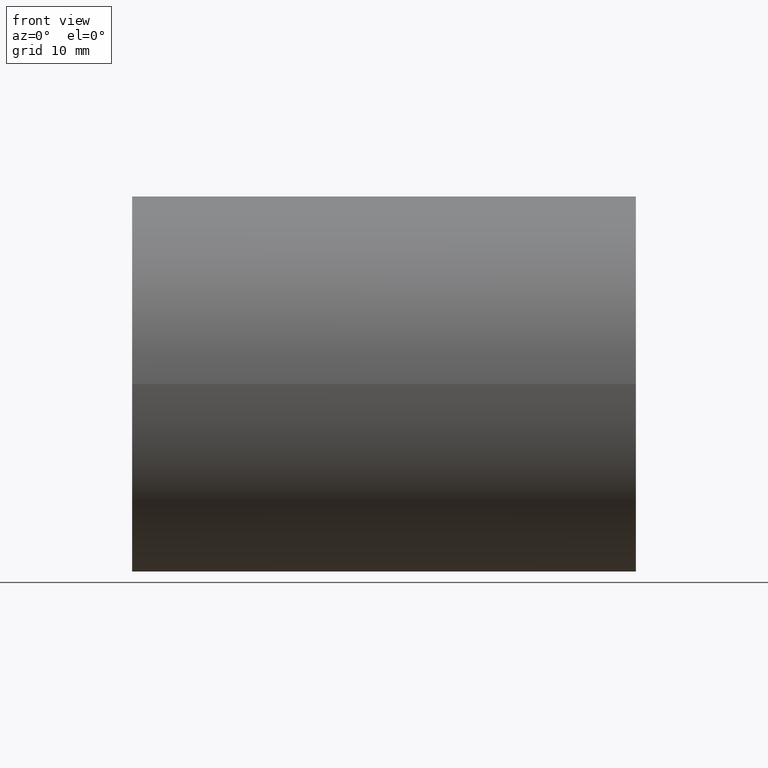
[diagram: clean part render]
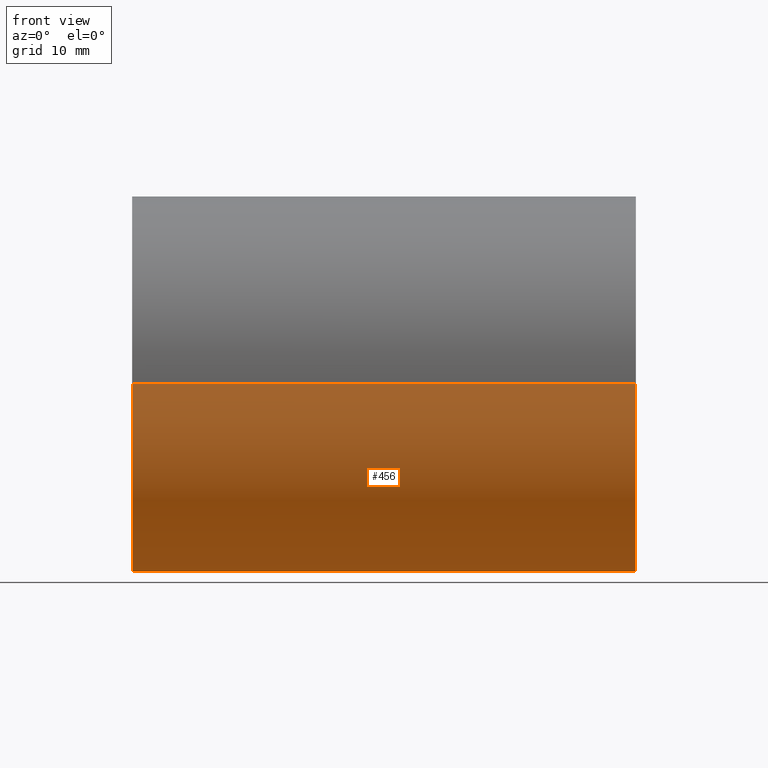
[diagram: same view with one face highlighted and labeled with its STEP entity id]
A machine part, front view. The second image highlights one B-rep face of the part: STEP entity #456.
In plain terms, the highlighted cylindrical surface (partial cylindrical patch) has radius 30.15 mm, axis along (1, 0, -0).
Its self-contained STEP definition (entity closure, byte-faithful):
#1 = CARTESIAN_POINT ( 'NONE',  ( 7.257899920961155438, 30.09054209445073624, -1.954459448923514309 ) ) ;
#6 = CARTESIAN_POINT ( 'NONE',  ( 6.833178922795428711, 29.99094050289255620, -3.101204850805989732 ) ) ;
#7 = CARTESIAN_POINT ( 'NONE',  ( -3.758825390325387428, 29.44040599668011282, -6.508684677632751381 ) ) ;
#13 = CARTESIAN_POINT ( 'NONE',  ( 3.764721945487967236, 29.44120856578778600, -6.504956787482730540 ) ) ;
#22 = CARTESIAN_POINT ( 'NONE',  ( -7.500000000000000000, 30.14999999999999858, 6.235175805712512231E-16 ) ) ;
#28 = VERTEX_POINT ( 'NONE', #253 ) ;
#38 = VERTEX_POINT ( 'NONE', #408 ) ;
#41 = CARTESIAN_POINT ( 'NONE',  ( 2.417079047445003237, 29.30119336752071035, -7.104081497322757066 ) ) ;
#43 = CARTESIAN_POINT ( 'NONE',  ( 6.495921771435392067, 29.91582617749616801, -3.756809246378832068 ) ) ;
#47 = CARTESIAN_POINT ( 'NONE',  ( -4.570604388502558457, 29.55720114824842781, -5.951416819226710508 ) ) ;
#48 = CARTESIAN_POINT ( 'NONE',  ( 40.49999999999999289, 30.15000000000001634, 0.000000000000000000 ) ) ;
#49 = DIRECTION ( 'NONE',  ( 1.000000000000000000, 3.061616997868382648E-16, -0.000000000000000000 ) ) ;
#54 = DIRECTION ( 'NONE',  ( -1.000000000000000000, -3.061616997868382648E-16, 0.000000000000000000 ) ) ;
#58 = CARTESIAN_POINT ( 'NONE',  ( -40.50000000000000711, 30.14999999999998792, 0.000000000000000000 ) ) ;
#60 = CARTESIAN_POINT ( 'NONE',  ( -6.095169833071157228, 29.83128716922219681, -4.377141417540606483 ) ) ;
#61 = DIRECTION ( 'NONE',  ( 1.000000000000000000, 3.061616997868382648E-16, -0.000000000000000000 ) ) ;
#62 = CARTESIAN_POINT ( 'NONE',  ( -40.50000000000000000, -1.022580077288039749E-14, 0.000000000000000000 ) ) ;
#84 = EDGE_CURVE ( 'NONE', #414, #491, #285, .T. ) ;
#85 = CARTESIAN_POINT ( 'NONE',  ( -1.945518420329401588, 29.26305329673580502, -7.259888212938143681 ) ) ;
#87 = CARTESIAN_POINT ( 'NONE',  ( 6.728320190875644258, 29.96714782578584746, -3.322698117997020972 ) ) ;
#88 = AXIS2_PLACEMENT_3D ( 'NONE', #415, #61, #342 ) ;
#89 = CARTESIAN_POINT ( 'NONE',  ( -2.709782837249907731E-15, 29.20226874747919510, -7.500000000000001776 ) ) ;
#94 = ORIENTED_EDGE ( 'NONE', *, *, #178, .T. ) ;
#100 = ORIENTED_EDGE ( 'NONE', *, *, #84, .F. ) ;
#122 = ORIENTED_EDGE ( 'NONE', *, *, #188, .T. ) ;
#133 = CARTESIAN_POINT ( 'NONE',  ( 1.947421301188889453, 29.26619400201478172, -7.246916262651096119 ) ) ;
#135 = EDGE_CURVE ( 'NONE', #28, #315, #517, .T. ) ;
#144 = FACE_OUTER_BOUND ( 'NONE', #519, .T. ) ;
#145 = DIRECTION ( 'NONE',  ( 1.000000000000000000, 3.061616997868382648E-16, -0.000000000000000000 ) ) ;
#156 = VECTOR ( 'NONE', #461, 1000.000000000000000 ) ;
#157 = AXIS2_PLACEMENT_3D ( 'NONE', #503, #54, #184 ) ;
#167 = CARTESIAN_POINT ( 'NONE',  ( 5.959454293609715236, 29.80296220583634792, -4.579830375796719366 ) ) ;
#169 = B_SPLINE_CURVE_WITH_KNOTS ( 'NONE', 3,
 ( #518, #391, #457, #1, #171, #6, #87, #43, #327, #167, #332, #450, #324, #249, #448, #13, #409, #489, #41, #133, #293, #445, #297, #320, #208 ),
 .UNSPECIFIED., .F., .F.,
 ( 4, 2, 2, 2, 2, 2, 2, 2, 2, 2, 1, 2, 4 ),
 ( 0.02354115631482120788, 0.02501237729148983804, 0.02648359826815846821, 0.02721920875649278676, 0.02795481924482710184, 0.02942604022149573201, 0.03016165070983004709, 0.03089726119816436217, 0.03236848217483298540, 0.03310409266316730048, 0.03383970315150161556, 0.03457531363983593065, 0.03531092412817024573 ),
 .UNSPECIFIED. ) ;
#171 = CARTESIAN_POINT ( 'NONE',  ( 7.114446939083600263, 30.05585745703253409, -2.423606325572946307 ) ) ;
#178 = EDGE_CURVE ( 'NONE', #38, #315, #186, .T. ) ;
#180 = CARTESIAN_POINT ( 'NONE',  ( -0.4945814229491364289, 29.20226874747919155, -7.500000000000000000 ) ) ;
#184 = DIRECTION ( 'NONE',  ( 2.301457347896261609E-16, -1.000000000000000000, 0.000000000000000000 ) ) ;
#185 = DIRECTION ( 'NONE',  ( -1.000000000000000000, -3.061616997868382648E-16, 0.000000000000000000 ) ) ;
#186 = LINE ( 'NONE', #512, #373 ) ;
#187 = CYLINDRICAL_SURFACE ( 'NONE', #88, 30.14999999999999858 ) ;
#188 = EDGE_CURVE ( 'NONE', #296, #361, #429, .T. ) ;
#208 = CARTESIAN_POINT ( 'NONE',  ( -2.709782837249907731E-15, 29.20226874747919510, -7.500000000000001776 ) ) ;
#211 = CARTESIAN_POINT ( 'NONE',  ( -4.948539832694137885, 29.61799726040874603, -5.641076152350087192 ) ) ;
#215 = AXIS2_PLACEMENT_3D ( 'NONE', #62, #185, #384 ) ;
#220 = CARTESIAN_POINT ( 'NONE',  ( -7.500000000000002665, 30.15000000000000924, -0.4974136404906663866 ) ) ;
#225 = CARTESIAN_POINT ( 'NONE',  ( -7.450995790178253309, 30.13770158883242800, -0.9876561040943162562 ) ) ;
#247 = CARTESIAN_POINT ( 'NONE',  ( -2.424035186337260228, 29.29924850759149280, -7.114334325466603381 ) ) ;
#249 = CARTESIAN_POINT ( 'NONE',  ( 4.568763765769825902, 29.55691057566958690, -5.952879847961887627 ) ) ;
#253 = CARTESIAN_POINT ( 'NONE',  ( -2.709782837249907731E-15, 29.20226874747919510, -7.500000000000001776 ) ) ;
#256 = EDGE_CURVE ( 'NONE', #38, #414, #292, .T. ) ;
#260 = CARTESIAN_POINT ( 'NONE',  ( -6.505593367890553758, 29.91694570946075515, -3.764187038947270914 ) ) ;
#261 = CARTESIAN_POINT ( 'NONE',  ( -6.735889782773024415, 29.96850493715256647, -3.334172780592237206 ) ) ;
#285 = LINE ( 'NONE', #291, #474 ) ;
#291 = CARTESIAN_POINT ( 'NONE',  ( -40.49999999999999289, -30.15000000000000924, 3.692310099429270397E-15 ) ) ;
#292 = CIRCLE ( 'NONE', #215, 30.14999999999999858 ) ;
#293 = CARTESIAN_POINT ( 'NONE',  ( 1.472557372412822252, 29.23642517908139027, -7.366207328173618230 ) ) ;
#294 = CARTESIAN_POINT ( 'NONE',  ( -3.328353066352716549, 29.38788782235466357, -6.738825219933660904 ) ) ;
#296 = VERTEX_POINT ( 'NONE', #388 ) ;
#297 = CARTESIAN_POINT ( 'NONE',  ( 0.4967811661545651347, 29.20546476929848367, -7.487587137914749391 ) ) ;
#307 = CARTESIAN_POINT ( 'NONE',  ( -5.473192700972075997, 29.71026193866455145, -5.133551392847827799 ) ) ;
#309 = CARTESIAN_POINT ( 'NONE',  ( -5.128990588209845214, 29.64878362725915295, -5.477466913732909504 ) ) ;
#315 = VERTEX_POINT ( 'NONE', #397 ) ;
#320 = CARTESIAN_POINT ( 'NONE',  ( 0.2473898949262569036, 29.20226874747919510, -7.499999999999999112 ) ) ;
#324 = CARTESIAN_POINT ( 'NONE',  ( 4.948620008384387425, 29.61800466638662144, -5.641058486161945495 ) ) ;
#327 = CARTESIAN_POINT ( 'NONE',  ( 6.368254693063371441, 29.88828211903363297, -3.969296864867852381 ) ) ;
#332 = CARTESIAN_POINT ( 'NONE',  ( 5.650363993895966885, 29.74194682474434615, -4.956063748514957013 ) ) ;
#342 = DIRECTION ( 'NONE',  ( -2.301457347896261609E-16, 1.000000000000000000, 0.000000000000000000 ) ) ;
#343 = CARTESIAN_POINT ( 'NONE',  ( -7.111665646447423939, 30.05519697605279461, -2.431693037710095595 ) ) ;
#353 = ORIENTED_EDGE ( 'NONE', *, *, #256, .F. ) ;
#357 = EDGE_CURVE ( 'NONE', #296, #28, #169, .T. ) ;
#361 = VERTEX_POINT ( 'NONE', #48 ) ;
#371 = CARTESIAN_POINT ( 'NONE',  ( -40.49999999999999289, -30.15000000000000924, 3.692310099429271974E-15 ) ) ;
#373 = VECTOR ( 'NONE', #145, 1000.000000000000000 ) ;
#383 = CARTESIAN_POINT ( 'NONE',  ( -7.257727571318580040, 30.09050229377596253, -1.954019791540228645 ) ) ;
#384 = DIRECTION ( 'NONE',  ( 2.301457347896261609E-16, -1.000000000000000000, 0.000000000000000000 ) ) ;
#388 = CARTESIAN_POINT ( 'NONE',  ( 7.500000000000000000, 30.15000000000000213, -7.042154990020730619E-21 ) ) ;
#390 = ORIENTED_EDGE ( 'NONE', *, *, #357, .F. ) ;
#391 = CARTESIAN_POINT ( 'NONE',  ( 7.500000000000000000, 30.14999999999999858, -0.4905988750414386756 ) ) ;
#397 = CARTESIAN_POINT ( 'NONE',  ( -7.500000000000000000, 30.14999999999999858, 6.235175805712512231E-16 ) ) ;
#400 = ORIENTED_EDGE ( 'NONE', *, *, #135, .F. ) ;
#408 = CARTESIAN_POINT ( 'NONE',  ( -40.50000000000000711, 30.14999999999998792, 0.000000000000000000 ) ) ;
#409 = CARTESIAN_POINT ( 'NONE',  ( 3.334695411056852965, 29.38854447379354440, -6.736016119325355156 ) ) ;
#410 = CARTESIAN_POINT ( 'NONE',  ( -4.371990682114887505, 29.52703611536552941, -6.098863304948894282 ) ) ;
#414 = VERTEX_POINT ( 'NONE', #371 ) ;
#415 = CARTESIAN_POINT ( 'NONE',  ( -40.50000000000000000, -1.022580077288039749E-14, 0.000000000000000000 ) ) ;
#420 = CARTESIAN_POINT ( 'NONE',  ( 40.50000000000000711, -30.14999999999998437, 3.692310099429270397E-15 ) ) ;
#421 = CARTESIAN_POINT ( 'NONE',  ( -5.947569797258573487, 29.80139052933342469, -4.575607948172633499 ) ) ;
#429 = LINE ( 'NONE', #58, #156 ) ;
#445 = CARTESIAN_POINT ( 'NONE',  ( 0.9873235422852029153, 29.21792581003722589, -7.438813406569740216 ) ) ;
#448 = CARTESIAN_POINT ( 'NONE',  ( 4.372452661671785812, 29.52711677256019129, -6.098447036328461301 ) ) ;
#450 = CARTESIAN_POINT ( 'NONE',  ( 5.131766195073113934, 29.64925962307484753, -5.474922009017100244 ) ) ;
#456 = ADVANCED_FACE ( 'NONE', ( #144 ), #187, .T. ) ;
#457 = CARTESIAN_POINT ( 'NONE',  ( 7.452337983265223009, 30.13803168244471564, -0.9796333923242591668 ) ) ;
#461 = DIRECTION ( 'NONE',  ( 1.000000000000000000, 3.061616997868382648E-16, -0.000000000000000000 ) ) ;
#468 = CIRCLE ( 'NONE', #157, 30.14999999999999858 ) ;
#474 = VECTOR ( 'NONE', #49, 1000.000000000000000 ) ;
#479 = EDGE_CURVE ( 'NONE', #361, #491, #468, .T. ) ;
#488 = CARTESIAN_POINT ( 'NONE',  ( -0.9825336582815805686, 29.21483559278428999, -7.451553287640302337 ) ) ;
#489 = CARTESIAN_POINT ( 'NONE',  ( 2.650343327103884761, 29.32141338599536695, -7.020449195711024437 ) ) ;
#491 = VERTEX_POINT ( 'NONE', #420 ) ;
#494 = ORIENTED_EDGE ( 'NONE', *, *, #479, .T. ) ;
#503 = CARTESIAN_POINT ( 'NONE',  ( 40.50000000000000000, 1.457329690985350156E-14, 0.000000000000000000 ) ) ;
#510 = CARTESIAN_POINT ( 'NONE',  ( -5.636943893866860122, 29.74095538901171309, -4.953245211579987206 ) ) ;
#512 = CARTESIAN_POINT ( 'NONE',  ( -40.50000000000000711, 30.14999999999998792, 0.000000000000000000 ) ) ;
#517 = B_SPLINE_CURVE_WITH_KNOTS ( 'NONE', 3,
 ( #89, #180, #488, #85, #247, #294, #7, #410, #47, #211, #309, #307, #510, #421, #60, #260, #261, #343, #383, #225, #220, #22 ),
 .UNSPECIFIED., .F., .F.,
 ( 4, 2, 2, 2, 2, 2, 2, 2, 2, 2, 4 ),
 ( 0.03531092412817024573, 0.03678155526354924543, 0.03825218639892824513, 0.03972281753430724482, 0.04045813310199674467, 0.04119344866968624452, 0.04192876423737574437, 0.04266407980506524422, 0.04413471094044424392, 0.04560534207582323668, 0.04707597321120223638 ),
 .UNSPECIFIED. ) ;
#518 = CARTESIAN_POINT ( 'NONE',  ( 7.500000000000000000, 30.15000000000000213, -7.042154990020730619E-21 ) ) ;
#519 = EDGE_LOOP ( 'NONE', ( #100, #353, #94, #400, #390, #122, #494 ) ) ;